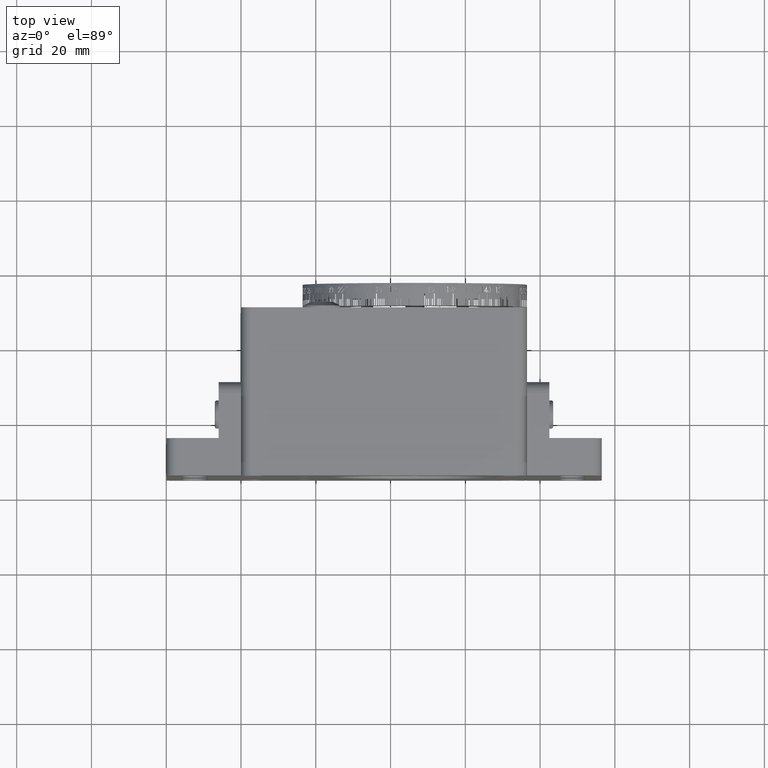
[diagram: clean part render]
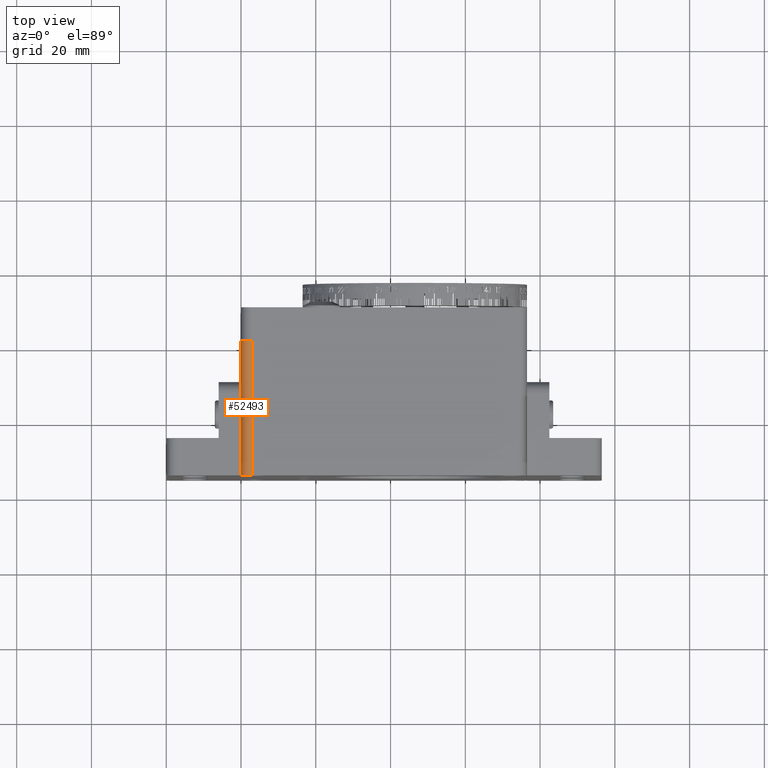
[diagram: same view with one face highlighted and labeled with its STEP entity id]
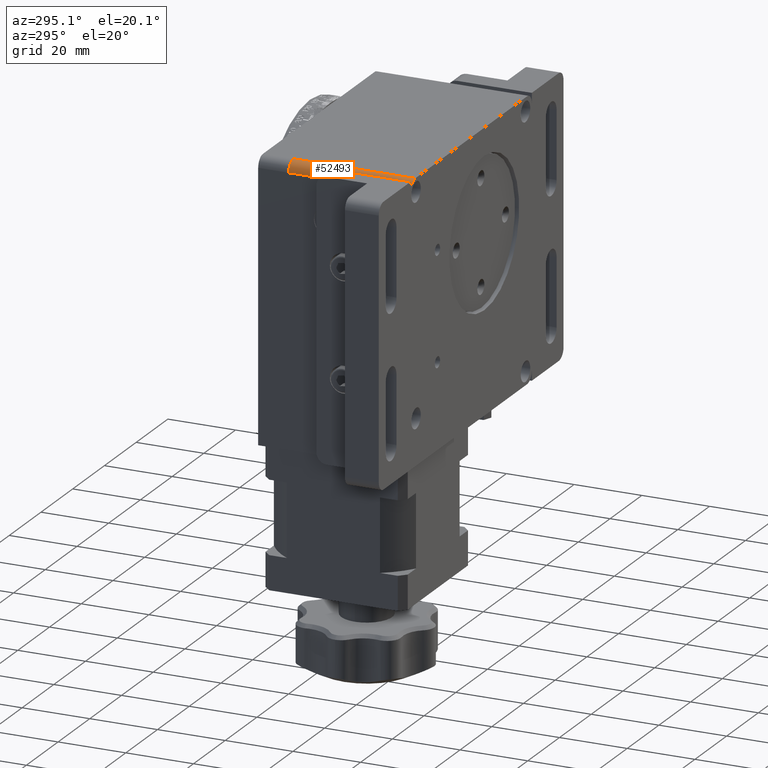
[diagram: same view with one face highlighted and labeled with its STEP entity id]
A machine part, top view. The second image highlights one B-rep face of the part: STEP entity #52493.
A second angle (auxiliary view) of the same face is appended — the face is thin or edge-on in the first view.
In plain terms, the highlighted cylindrical surface (edge-blend (fillet) strip) has radius 3 mm, axis along (0, 1, -0).
Its self-contained STEP definition (entity closure, byte-faithful):
#3470 = EDGE_CURVE ( 'NONE', #98405, #94861, #85790, .T. ) ;
#8588 = DIRECTION ( 'NONE',  ( 6.938893903907217300E-017, 1.000000000000000000, -6.104495404574442400E-016 ) ) ;
#11246 = CIRCLE ( 'NONE', #80406, 3.000000000000002700 ) ;
#17386 = DIRECTION ( 'NONE',  ( 0.0000000000000000000, 0.0000000000000000000, 1.000000000000000000 ) ) ;
#23098 = EDGE_CURVE ( 'NONE', #102329, #94861, #36452, .T. ) ;
#23188 = DIRECTION ( 'NONE',  ( 6.938893903907217300E-017, 1.000000000000000000, -6.104495404574442400E-016 ) ) ;
#27548 = LINE ( 'NONE', #103048, #47944 ) ;
#34418 = DIRECTION ( 'NONE',  ( 6.938893903907217300E-017, 1.000000000000000000, -6.104495404574442400E-016 ) ) ;
#35250 = VECTOR ( 'NONE', #23188, 1000.000000000000000 ) ;
#36452 = LINE ( 'NONE', #109956, #35250 ) ;
#40754 = AXIS2_PLACEMENT_3D ( 'NONE', #95383, #95015, #94651 ) ;
#47944 = VECTOR ( 'NONE', #111808, 1000.000000000000000 ) ;
#49682 = ORIENTED_EDGE ( 'NONE', *, *, #3470, .F. ) ;
#52493 = ADVANCED_FACE ( 'NONE', ( #71877 ), #86741, .T. ) ;
#59155 = EDGE_CURVE ( 'NONE', #109419, #98405, #27548, .T. ) ;
#60449 = CARTESIAN_POINT ( 'NONE',  ( 2.885098609172589200E-015, -36.00000000000014900, 78.99999999999998600 ) ) ;
#60564 = CARTESIAN_POINT ( 'NONE',  ( 3.000000000000002200, -36.00000000000014900, 79.00000000000000000 ) ) ;
#61572 = CARTESIAN_POINT ( 'NONE',  ( 3.000000000000023500, -36.00000000000014900, 82.00000000000000000 ) ) ;
#68053 = CARTESIAN_POINT ( 'NONE',  ( 5.383100414579194200E-015, -4.822277835137321900E-014, 78.99999999999998600 ) ) ;
#69296 = DIRECTION ( 'NONE',  ( 0.0000000000000000000, 0.0000000000000000000, 1.000000000000000000 ) ) ;
#71877 = FACE_OUTER_BOUND ( 'NONE', #95395, .T. ) ;
#76395 = AXIS2_PLACEMENT_3D ( 'NONE', #86319, #34418, #17386 ) ;
#80406 = AXIS2_PLACEMENT_3D ( 'NONE', #60564, #8588, #69296 ) ;
#85790 = CIRCLE ( 'NONE', #40754, 3.000000000000002700 ) ;
#86319 = CARTESIAN_POINT ( 'NONE',  ( 3.000000000000002200, -36.00000000000014900, 79.00000000000000000 ) ) ;
#86741 = CYLINDRICAL_SURFACE ( 'NONE', #76395, 3.000000000000002700 ) ;
#87221 = EDGE_CURVE ( 'NONE', #109419, #102329, #11246, .T. ) ;
#88399 = CARTESIAN_POINT ( 'NONE',  ( 3.000000000000025800, -4.980422291835306400E-014, 82.00000000000000000 ) ) ;
#89508 = ORIENTED_EDGE ( 'NONE', *, *, #59155, .F. ) ;
#94651 = DIRECTION ( 'NONE',  ( 0.0000000000000000000, -6.104149158401666400E-016, 1.000000000000000000 ) ) ;
#94861 = VERTEX_POINT ( 'NONE', #88399 ) ;
#95015 = DIRECTION ( 'NONE',  ( 6.938893903907217300E-017, 1.000000000000000000, -6.104495404574442400E-016 ) ) ;
#95383 = CARTESIAN_POINT ( 'NONE',  ( 3.000000000000004400, -4.797297817083255900E-014, 79.00000000000000000 ) ) ;
#95395 = EDGE_LOOP ( 'NONE', ( #49682, #89508, #110282, #101205 ) ) ;
#98405 = VERTEX_POINT ( 'NONE', #68053 ) ;
#101205 = ORIENTED_EDGE ( 'NONE', *, *, #23098, .T. ) ;
#102329 = VERTEX_POINT ( 'NONE', #61572 ) ;
#103048 = CARTESIAN_POINT ( 'NONE',  ( 2.885098609172589200E-015, -36.00000000000014900, 78.99999999999998600 ) ) ;
#109419 = VERTEX_POINT ( 'NONE', #60449 ) ;
#109956 = CARTESIAN_POINT ( 'NONE',  ( 3.000000000000023500, -36.00000000000014900, 82.00000000000000000 ) ) ;
#110282 = ORIENTED_EDGE ( 'NONE', *, *, #87221, .T. ) ;
#111808 = DIRECTION ( 'NONE',  ( 6.938893903907217300E-017, 1.000000000000000000, -6.104495404574442400E-016 ) ) ;